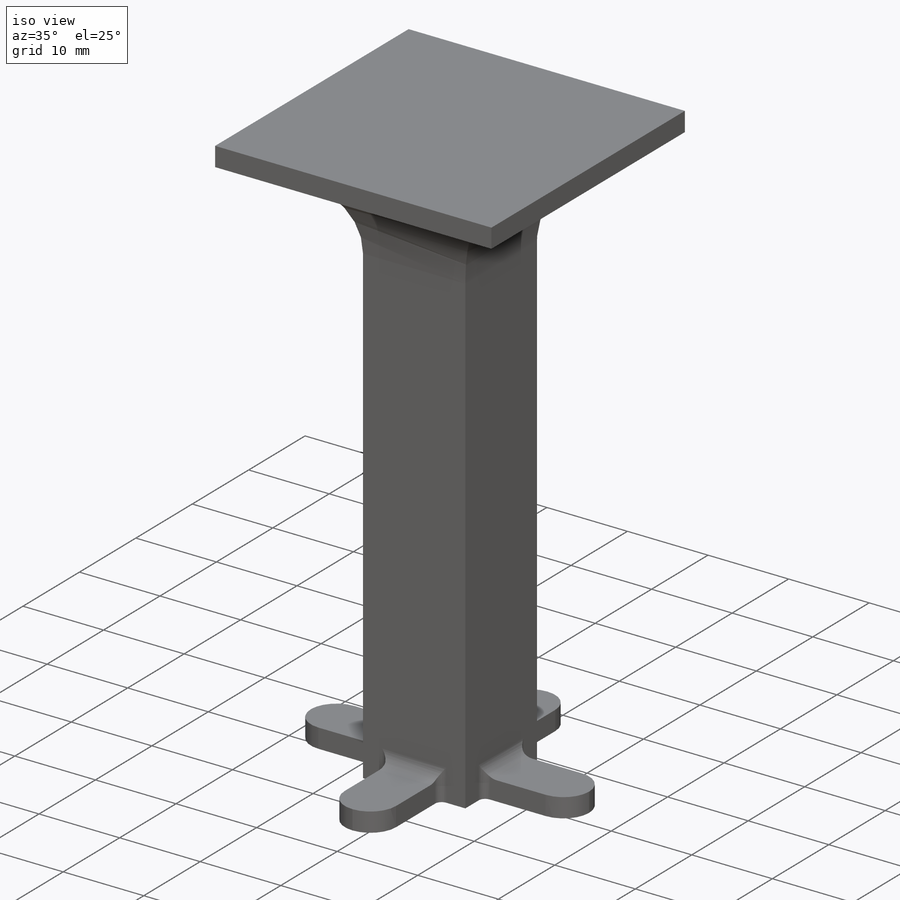
[diagram: iso view]
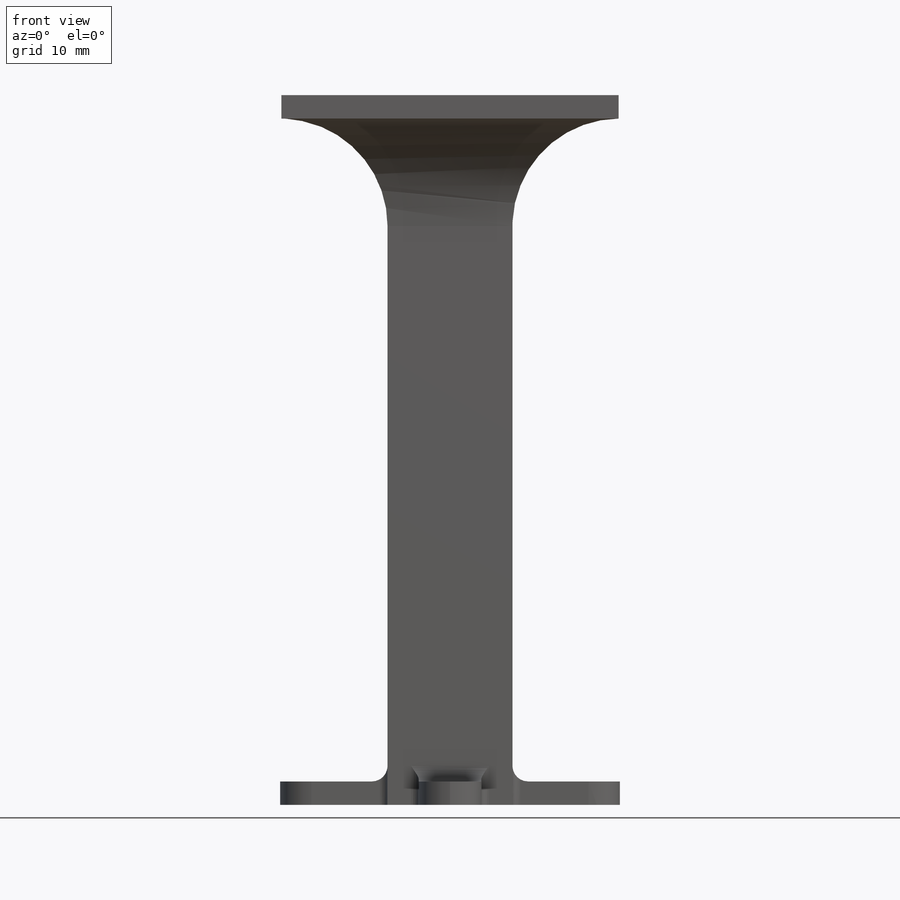
[diagram: front view]
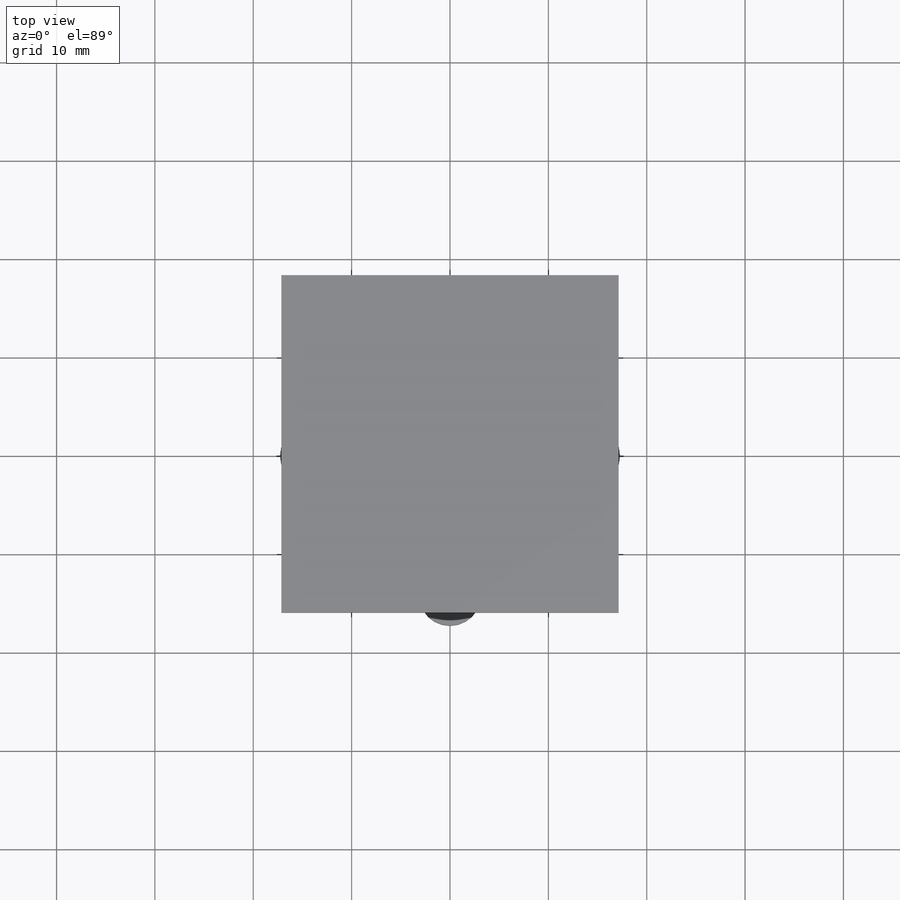
[diagram: top view]
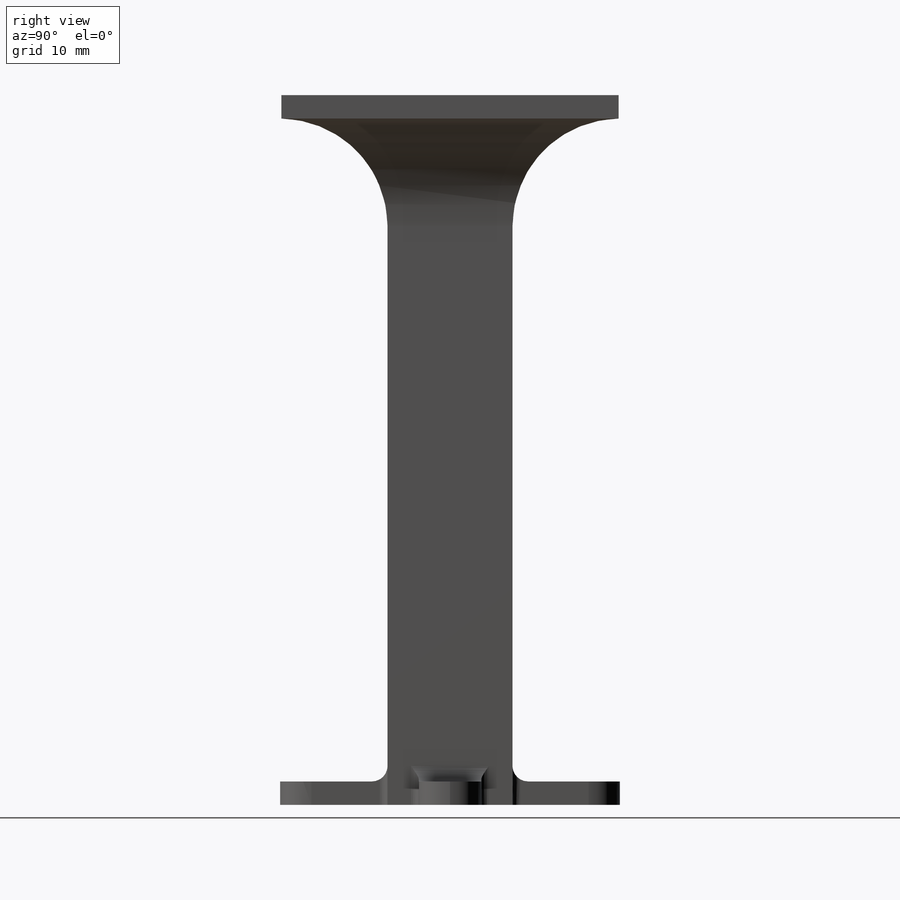
[diagram: right view]
SOLIDWORKS PART (.sldprt)
format: sldprt  version: not decoded by parser v0  size: 352,256 bytes
history: native  units: mm
features: sketch x5, fillet x4, extrude x3, cut_extrude x2, material x1 (+12 scaffold rows collapsed)
feature tree (27):
  scaffold x12  (default folders/planes/origin — collapsed)
  material  "Material <not specified>"
  sketch  "Sketch1"  dims[D1=12.7mm D2=34.544mm D3=34.544mm D4=12.7mm]
  extrude  "Boss-Extrude1"  Depth=2.38125mm
  sketch  "Sketch2"
  extrude  "Boss-Extrude2"  Depth=67.3862mm
  sketch  "Sketch3"  dims[D1=34.29mm D2=34.29mm]
  extrude  "Boss-Extrude3"  Depth=2.38125mm
  fillet  "Fillet15"  Radius=10.922mm
  sketch  "Sketch4"  dims[D1=11.1125mm]
  cut_extrude  "Cut-Extrude1"  Depth=66.675mm
  sketch  "Sketch5"  dims[D1=3.175mm D2=3.175mm D3=3.175mm D4=3.175mm D5=3.175mm D6=3.175mm D7=3.175mm D8=3.175mm]
  cut_extrude  "Cut-Extrude2"  [1 undecoded]
  fillet  "Fillet18"  Radius=3.175mm
  fillet  "Fillet28"  Radius=0.79375mm
  fillet  "Fillet29"  Radius=1.5875mm
decode coverage: 12 of 14 modeling features carry decoded parameters
note: 1 parameter value undecoded
note: suppression state not decoded; provenance and decode notes live in map.json
